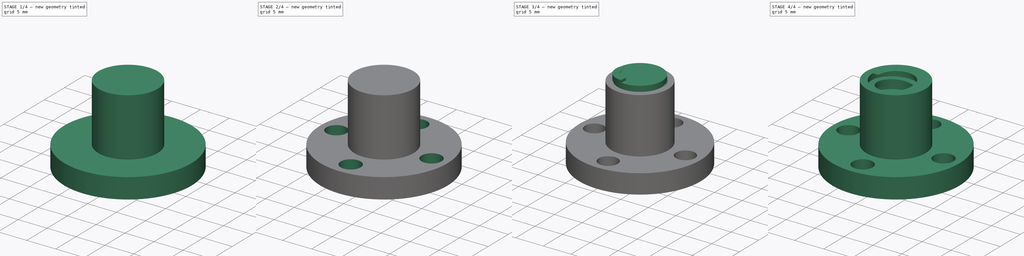
[diagram: build sequence overview — one tinted view per stage of 4, left to right]
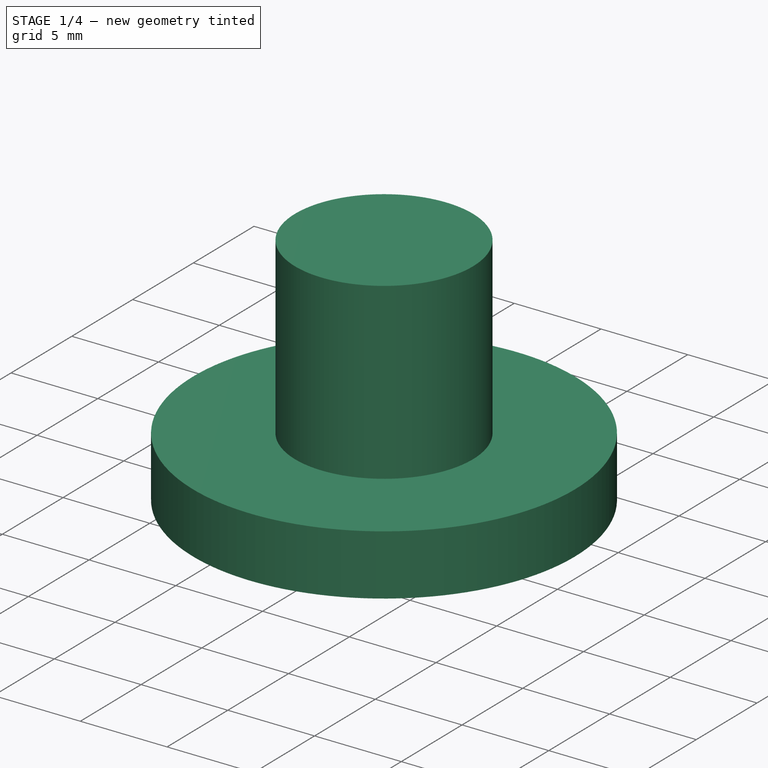
[diagram: stage 1 of 4 — iso view after this stage's code; geometry added in this stage tinted green]
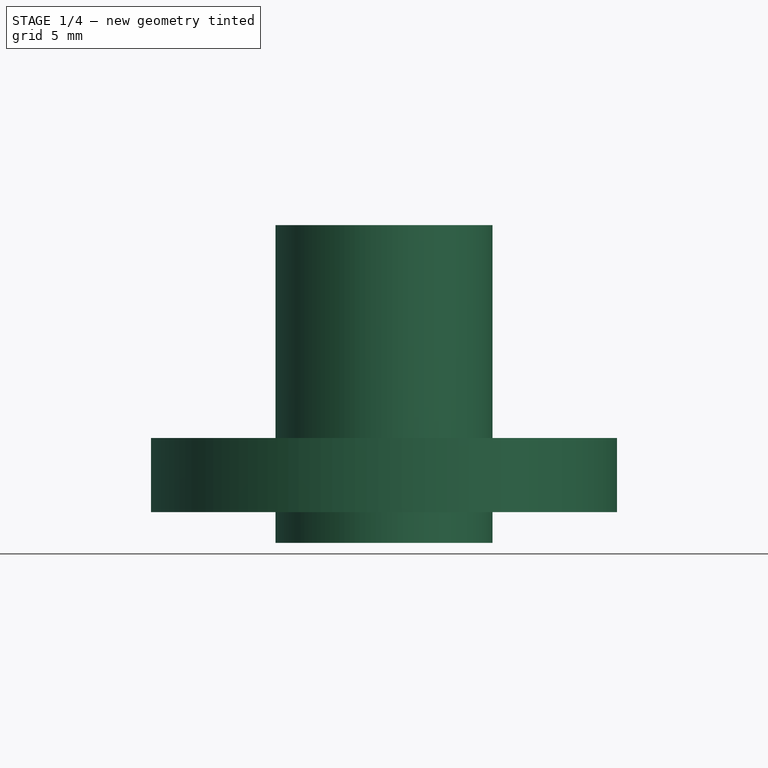
[diagram: stage 1 of 4 — front view after this stage's code; geometry added in this stage tinted green]
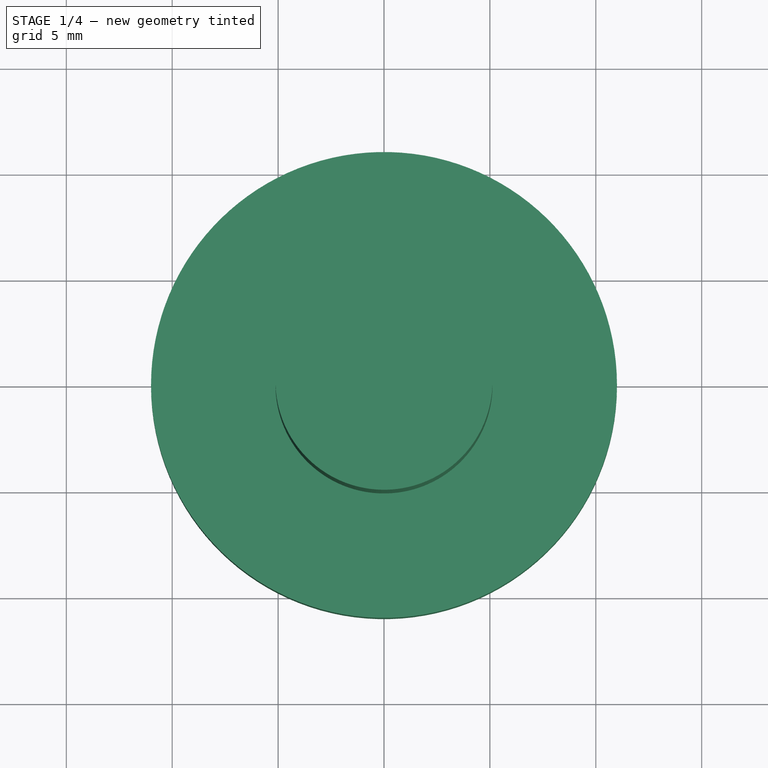
[diagram: stage 1 of 4 — top view after this stage's code; geometry added in this stage tinted green]
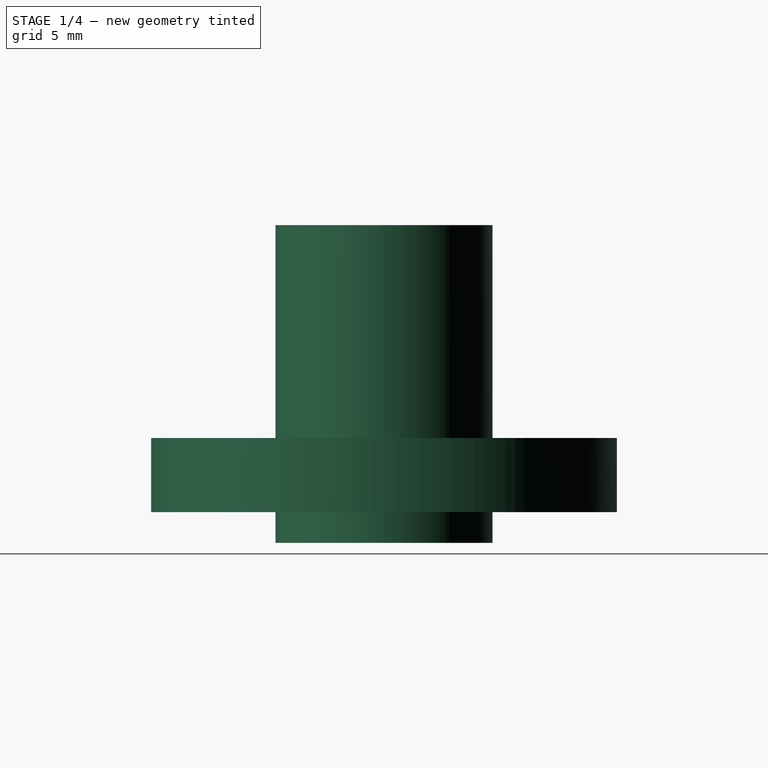
[diagram: stage 1 of 4 — right view after this stage's code; geometry added in this stage tinted green]
FCSTD DOCUMENT  (FreeCAD 0.14R3700 (Git))
Label: 8mm flanged lead screw nut with 2mm thread
License: CC-BY 3.0
LicenseURL: http://creativecommons.org/licenses/by/3.0/
objects: Sketcher::SketchObject×6, PartDesign::Pad×4, App::DocumentObjectGroup×3, Part::Cut×2, PartDesign::Pocket×1, Part::Helix×1, Part::Sweep×1, Part::MultiFuse×1
note: 21 computed .brp shape members not serialized (recipe doc carries the construction recipe); baked Part::Feature solids carry a one-line shape summary decoded from their .brp

FEATURE [Sketcher::SketchObject] Sketch  label="Sketch Base"
  sketch-geometry (1):
    g0: Circle CenterX=0 CenterY=0 CenterZ=0 NormalX=0 NormalY=0 NormalZ=1 Radius=11
  constraints (2):
    c: Coincident(g0,g-1)
    c: Radius(g0) = 11
FEATURE [PartDesign::Pad] Pad  label="Base Pad"
  Length = 3.5
  Length2 = 100
  Sketch = -> Sketch
  Type = 0
FEATURE [Sketcher::SketchObject] Sketch002  label="Sketch Shaft"
  Placement = pos=(0,0,-1.45) rot=(0,0,1;0rad)
  sketch-geometry (1):
    g0: Circle CenterX=0 CenterY=0 CenterZ=0 NormalX=0 NormalY=0 NormalZ=1 Radius=5.125
  constraints (2):
    c: Coincident(g0,g-1)
    c: Radius(g0) = 5.125
FEATURE [PartDesign::Pad] Pad001  label="Shaft Pad"
  Length = 15
  Length2 = 100
  Placement = pos=(0,0,-1.45) rot=(0,0,1;0rad)
  Sketch = -> Sketch002
  Type = 0
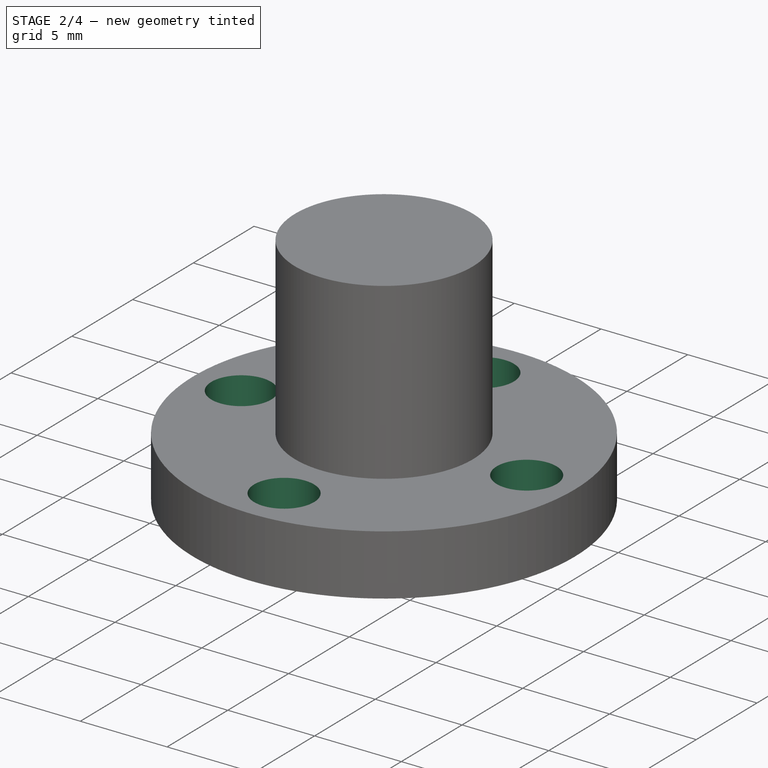
[diagram: stage 2 of 4 — iso view after this stage's code; geometry added in this stage tinted green]
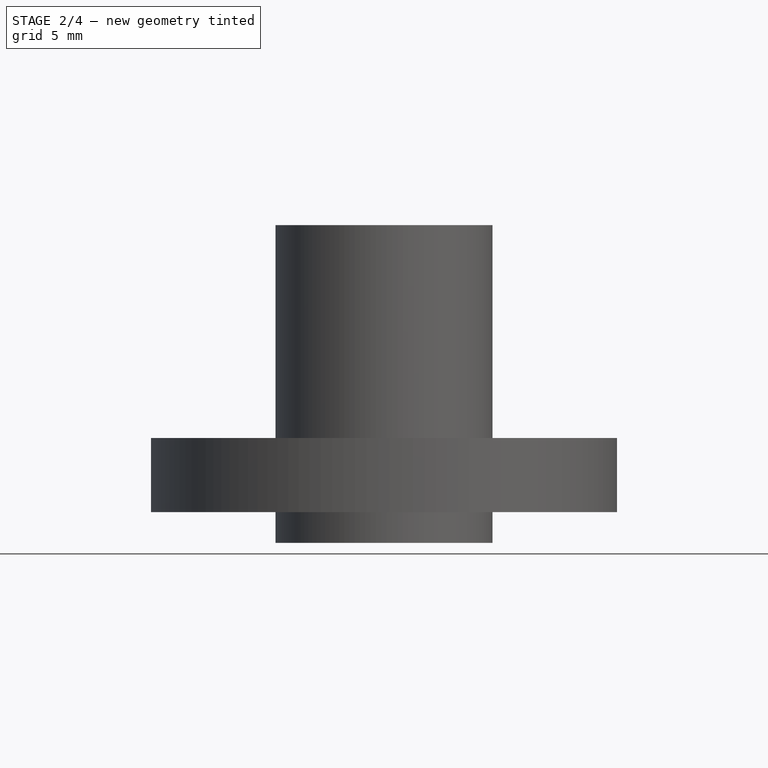
[diagram: stage 2 of 4 — front view after this stage's code; geometry added in this stage tinted green]
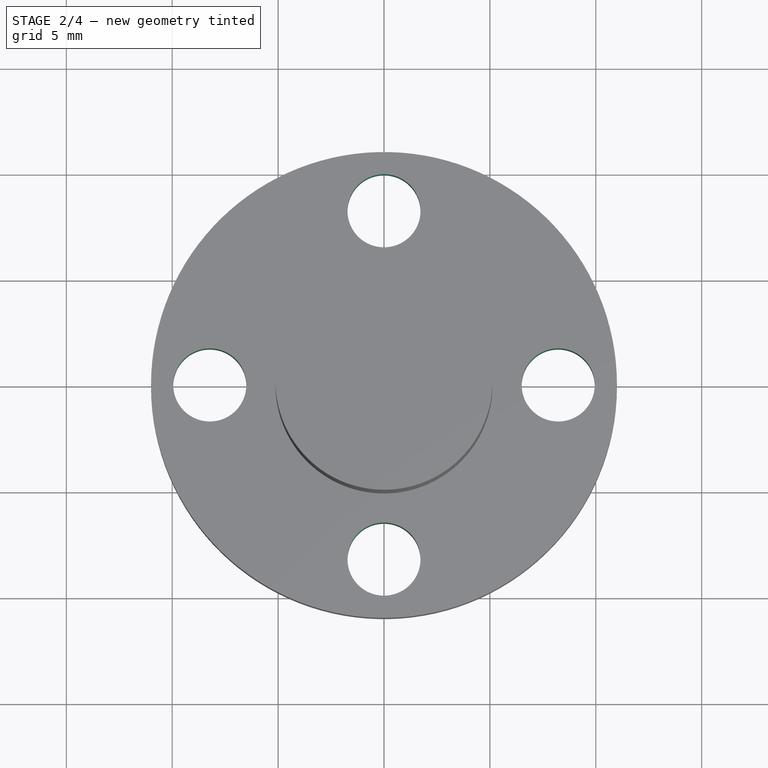
[diagram: stage 2 of 4 — top view after this stage's code; geometry added in this stage tinted green]
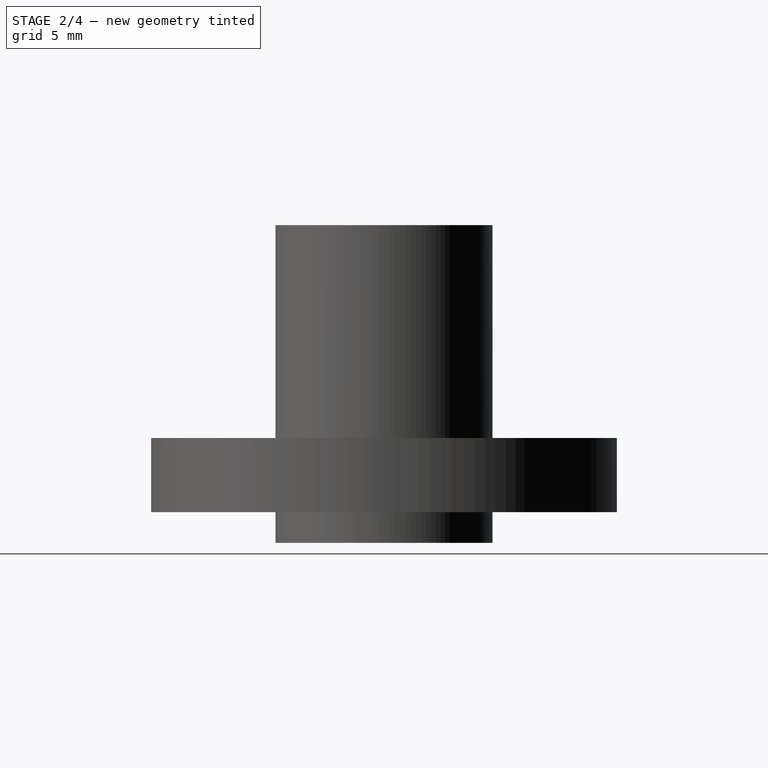
[diagram: stage 2 of 4 — right view after this stage's code; geometry added in this stage tinted green]
FEATURE [Sketcher::SketchObject] Sketch001
  Placement = pos=(0,0,3.5) rot=(0,0,1;0rad)
  Support = -> Pad [Face3]
  sketch-geometry (4):
    g0: Circle CenterX=0 CenterY=8.225 CenterZ=0 NormalX=0 NormalY=0 NormalZ=1 Radius=1.725
    g1: Circle CenterX=8.225 CenterY=0 CenterZ=0 NormalX=0 NormalY=0 NormalZ=1 Radius=1.725
    g2: Circle CenterX=-8.225 CenterY=0 CenterZ=0 NormalX=0 NormalY=0 NormalZ=1 Radius=1.725
    g3: Circle CenterX=0 CenterY=-8.225 CenterZ=0 NormalX=0 NormalY=0 NormalZ=1 Radius=1.725
  constraints (12):
    c: PointOnObject(g0,g-2)
    c: Radius(g0) = 1.725
    c: PointOnObject(g1,g-1)
    c: Equal(g1,g0)
    c: PointOnObject(g2,g-1)
    c: Equal(g2,g0)
    c: PointOnObject(g3,g-2)
    c: Equal(g3,g0)
    c: Symmetric(g3,g0,g-1)
    c: Symmetric(g2,g1,g-2)
    c: DistanceY(g0,g3) = -16.45
    c: DistanceX(g1,g2) = -16.45
FEATURE [PartDesign::Pocket] Pocket  label="Base Pad001"
  Length = 5
  Sketch = -> Sketch001
  Type = 1
FEATURE [App::DocumentObjectGroup] Group002  label="Thread"
  Group = -> [Helix,Pad002,Sketch004,Sweep,Pad003,Cut]
FEATURE [Part::MultiFuse] Fusion  label="Base & Shaft Fusion"
  Shapes = -> [Pocket,Pad001]
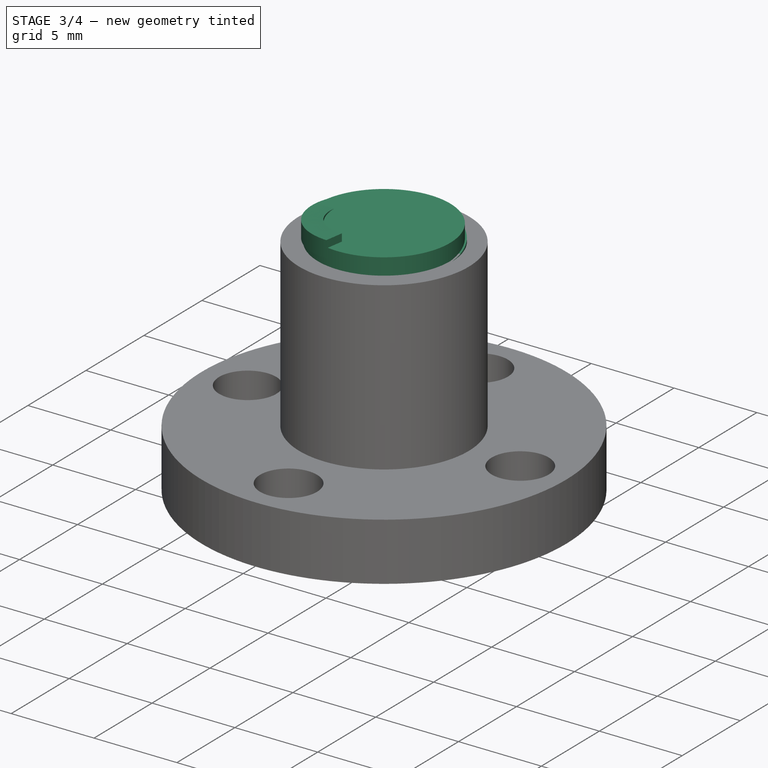
[diagram: stage 3 of 4 — iso view after this stage's code; geometry added in this stage tinted green]
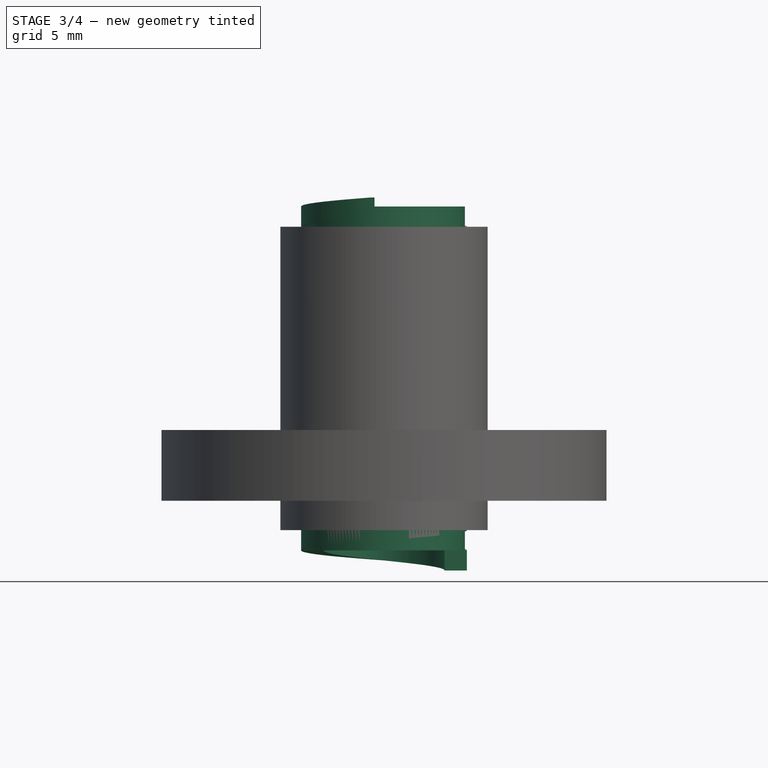
[diagram: stage 3 of 4 — front view after this stage's code; geometry added in this stage tinted green]
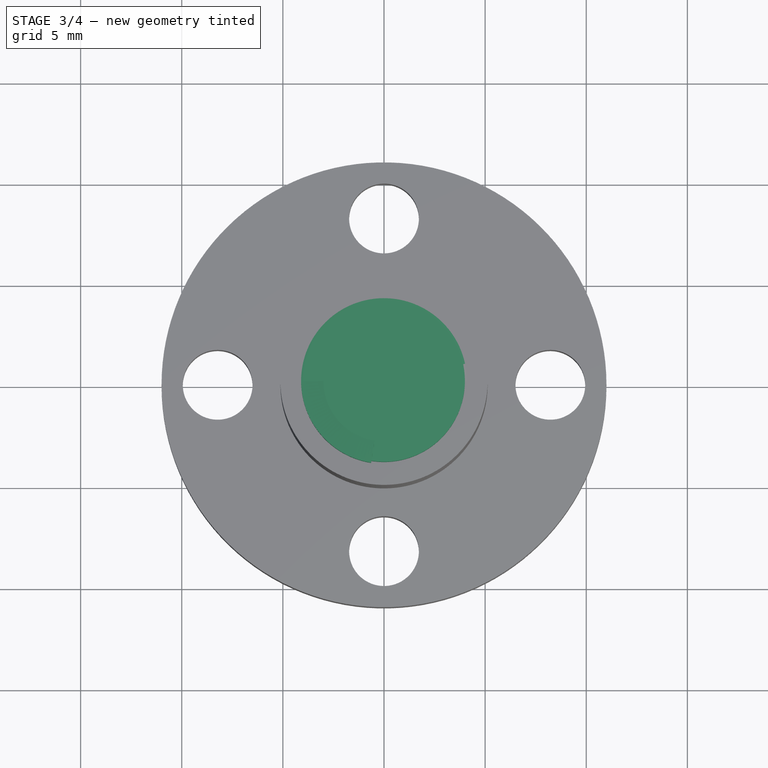
[diagram: stage 3 of 4 — top view after this stage's code; geometry added in this stage tinted green]
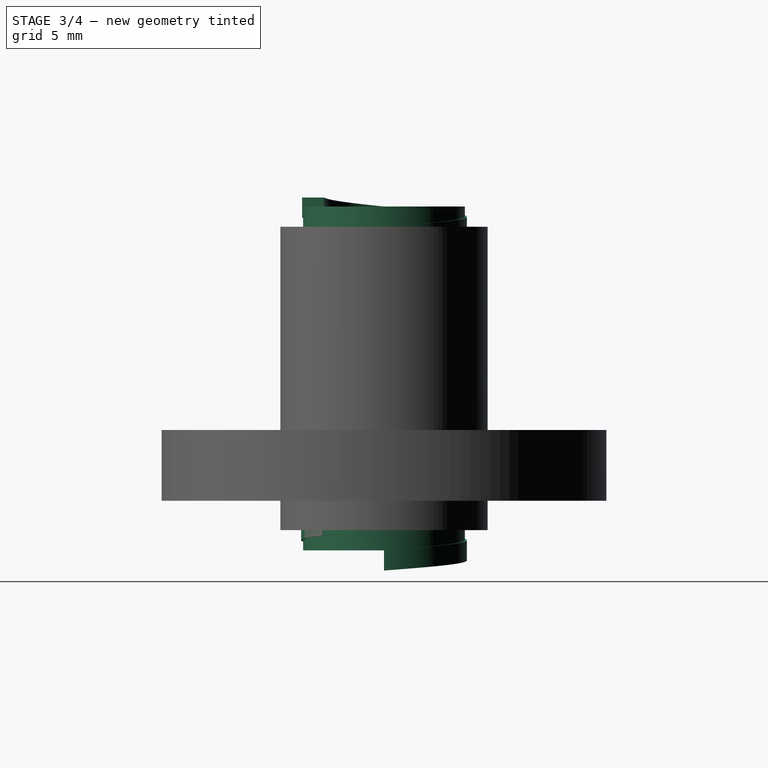
[diagram: stage 3 of 4 — right view after this stage's code; geometry added in this stage tinted green]
FEATURE [Sketcher::SketchObject] Sketch003  label="Sketch Thread Profile"
  Placement = pos=(0,0,-3.45) rot=(0,0,1;0rad)
  sketch-geometry (4):
    g0: Circle [constr] CenterX=0 CenterY=0 CenterZ=0 NormalX=0 NormalY=0 NormalZ=1 Radius=4
    g1: LineSegment StartX=4 StartY=0 StartZ=0 EndX=3 EndY=0 EndZ=0
    g2: LineSegment StartX=4 StartY=0 StartZ=0 EndX=3.89792 EndY=-0.897916 EndZ=0
    g3: LineSegment StartX=3.89792 StartY=-0.897916 StartZ=0 EndX=3 EndY=0 EndZ=0
  constraints (11):
    c: Coincident(g0,g-1)
    c: Radius(g0) = 4
    c: PointOnObject(g1,g0)
    c: Horizontal(g1)
    c: PointOnObject(g1,g-1)
    c: Distance(g1) = 1
    c: Coincident(g2,g1)
    c: PointOnObject(g2,g0)
    c: Coincident(g3,g2)
    c: Coincident(g3,g1)
    c: Angle(g3,g1) = 0.785398
FEATURE [Part::Helix] Helix  label="Thread Path Helix"
  Angle = 0
  Height = 17.45
  LocalCoord = 0
  Pitch = 2
  Placement = pos=(0,0,-3.45) rot=(0,0,1;0rad)
  Radius = 4
  Style = 1
FEATURE [App::DocumentObjectGroup] Group  label="Base"
  Group = -> [Pad,Pocket]
FEATURE [App::DocumentObjectGroup] Group001  label="Shaft"
  Group = -> [Pad001]
FEATURE [PartDesign::Pad] Pad002
  Length = 1
  Length2 = 100
  Placement = pos=(0,0,-3.45) rot=(0,0,1;0rad)
  Sketch = -> Sketch003
  Type = 0
FEATURE [Sketcher::SketchObject] Sketch004  label="Sketch Thread Profile 2"
  ExternalGeometry = -> [Pad002]
  Placement = pos=(0,0,-3.45) rot=(0,0.707107,0.707107;3.14159rad)
  Support = -> Pad002 [Face1]
  sketch-geometry (4):
    g0: LineSegment StartX=-4.1 StartY=1 StartZ=0 EndX=-3 EndY=1 EndZ=0
    g1: LineSegment StartX=-3 StartY=1 StartZ=0 EndX=-3 EndY=0 EndZ=0
    g2: LineSegment StartX=-3 StartY=0 StartZ=0 EndX=-4.1 EndY=0 EndZ=0
    g3: LineSegment StartX=-4.1 StartY=0 StartZ=0 EndX=-4.1 EndY=1 EndZ=0
  constraints (10):
    c: DistanceX(g2) = -1.1
    c: Horizontal(g2)
    c: Coincident(g1,g-3)
    c: Coincident(g2,g1)
    c: Coincident(g1,g0)
    c: Coincident(g0,g-4)
    c: Equal(g2,g0)
    c: Coincident(g3,g0)
    c: Coincident(g2,g3)
    c: Horizontal(g0)
FEATURE [Part::Sweep] Sweep  label="Thread Sweep"
  Frenet = true
  Sections = -> [Sketch004]
  Solid = true
  Spine = -> Helix [Edge1]
  Transition = 1
FEATURE [Sketcher::SketchObject] Sketch005  label="Rod Sketch"
  Placement = pos=(0,0,-2.45) rot=(0,0,1;0rad)
  sketch-geometry (1):
    g0: Circle CenterX=0 CenterY=0 CenterZ=0 NormalX=0 NormalY=0 NormalZ=1 Radius=4
  constraints (2):
    c: Coincident(g0,g-1)
    c: Radius(g0) = 4
FEATURE [PartDesign::Pad] Pad003  label="Rod Pad"
  Length = 17
  Length2 = 100
  Placement = pos=(0,0,-2.45) rot=(0,0,1;0rad)
  Sketch = -> Sketch005
  Type = 0
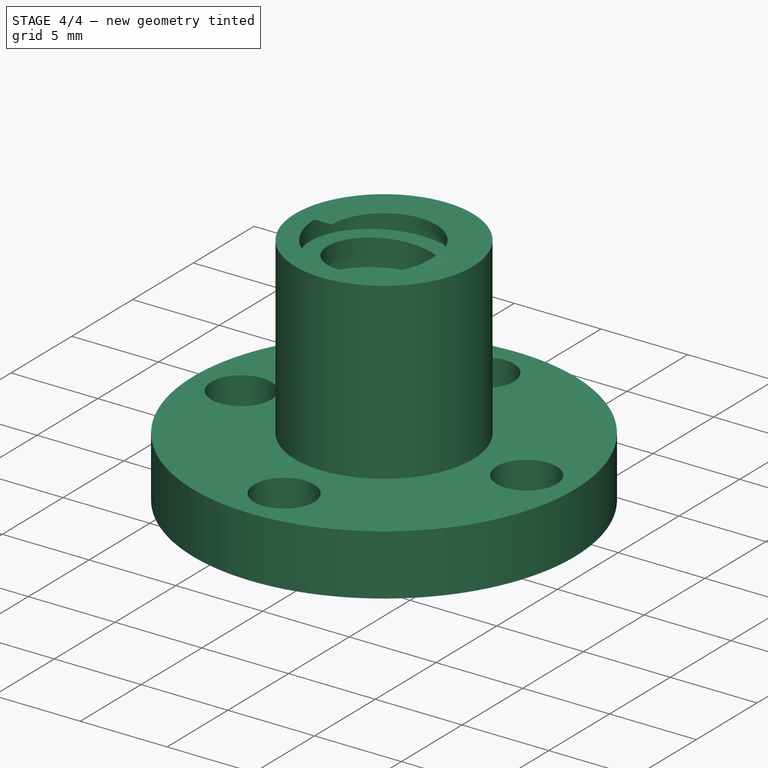
[diagram: stage 4 of 4 — iso view after this stage's code; geometry added in this stage tinted green]
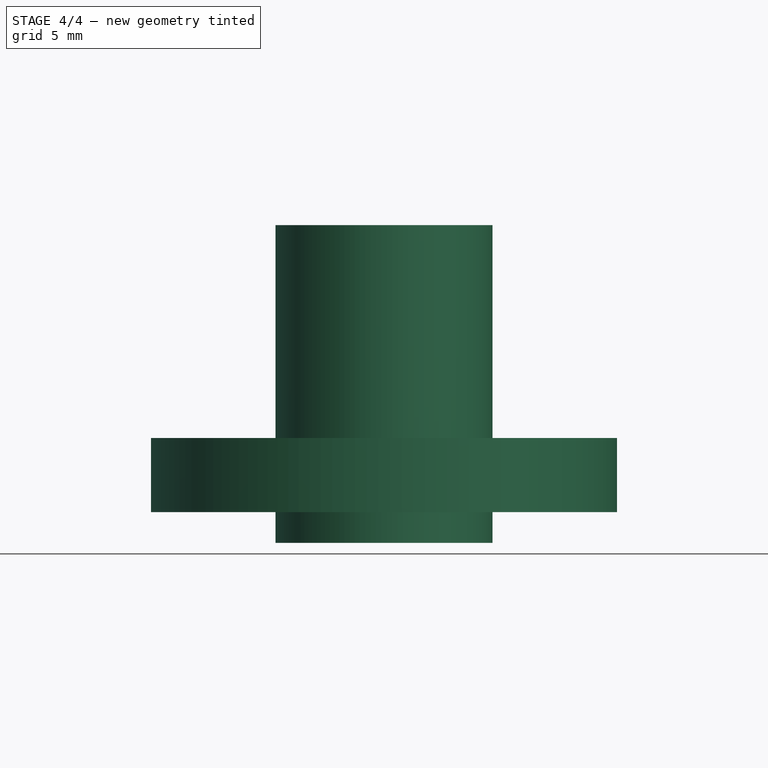
[diagram: stage 4 of 4 — front view after this stage's code; geometry added in this stage tinted green]
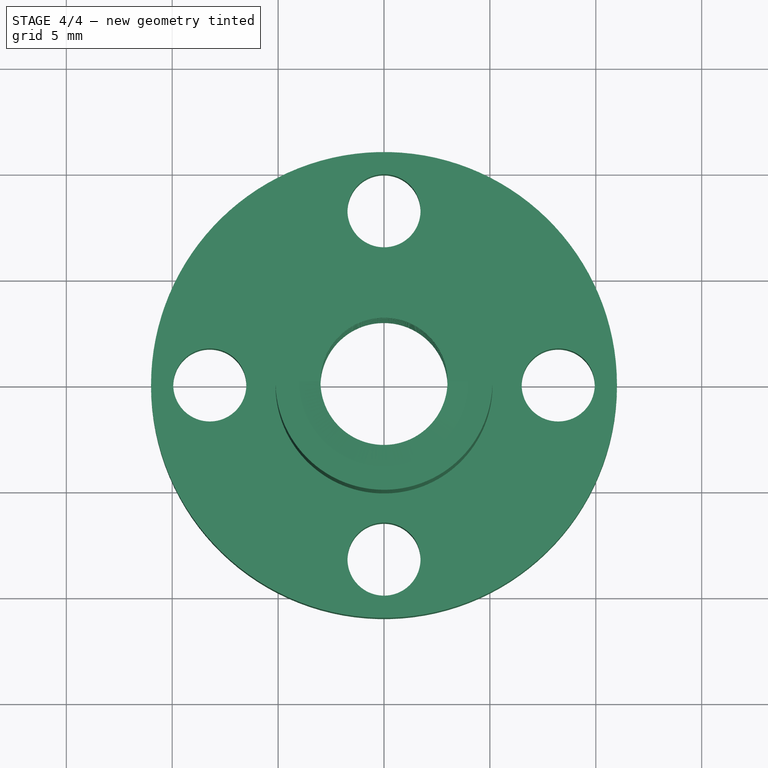
[diagram: stage 4 of 4 — top view after this stage's code; geometry added in this stage tinted green]
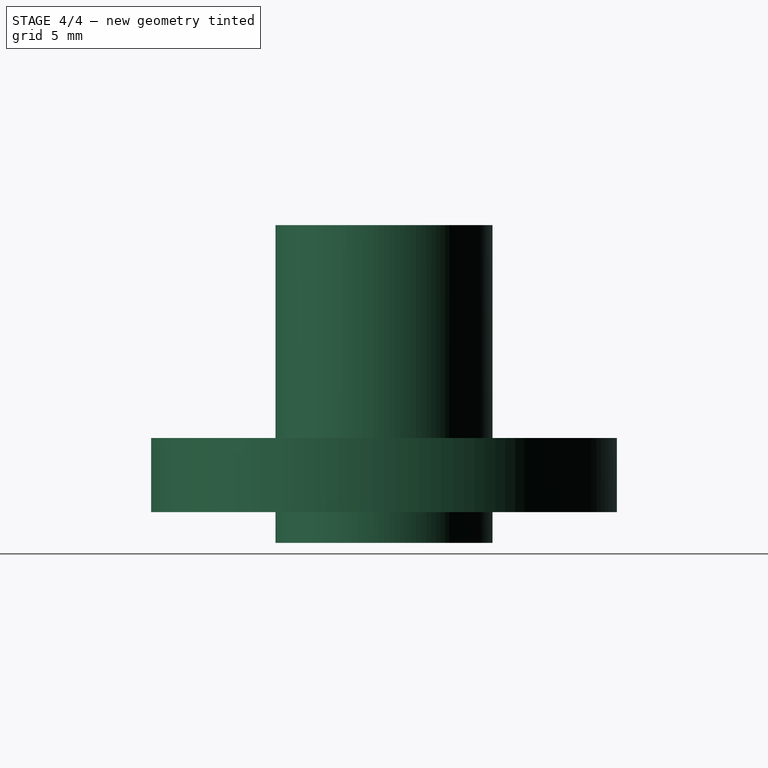
[diagram: stage 4 of 4 — right view after this stage's code; geometry added in this stage tinted green]
FEATURE [Part::Cut] Cut  label="Thread Cut"
  Base = -> Pad003
  Tool = -> Sweep
FEATURE [Part::Cut] Cut001  label="8mm flanged lead screw nut with 2mm thread"
  Base = -> Fusion
  Tool = -> Cut
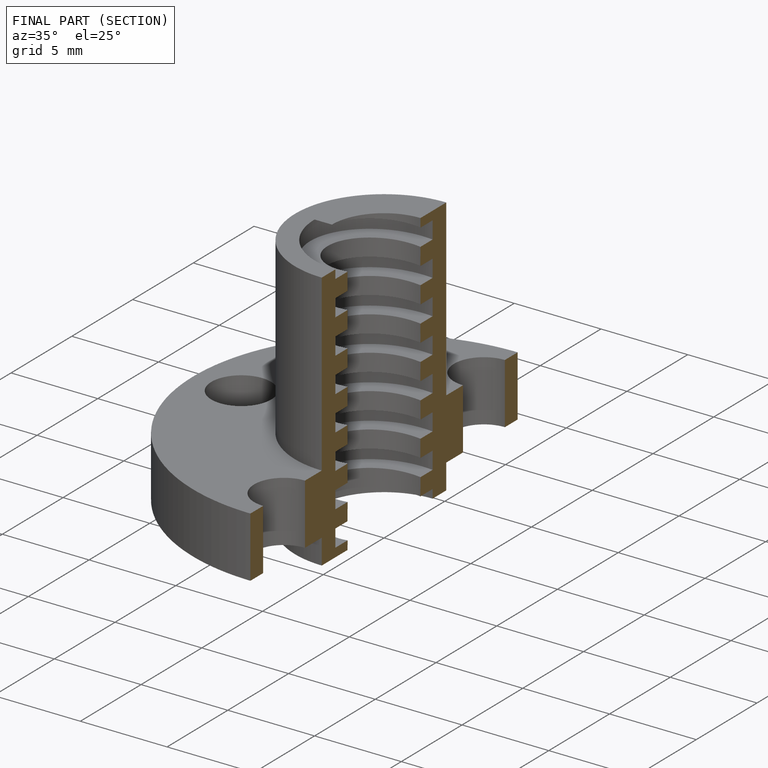
[diagram: finished part — half-section view (interior)]
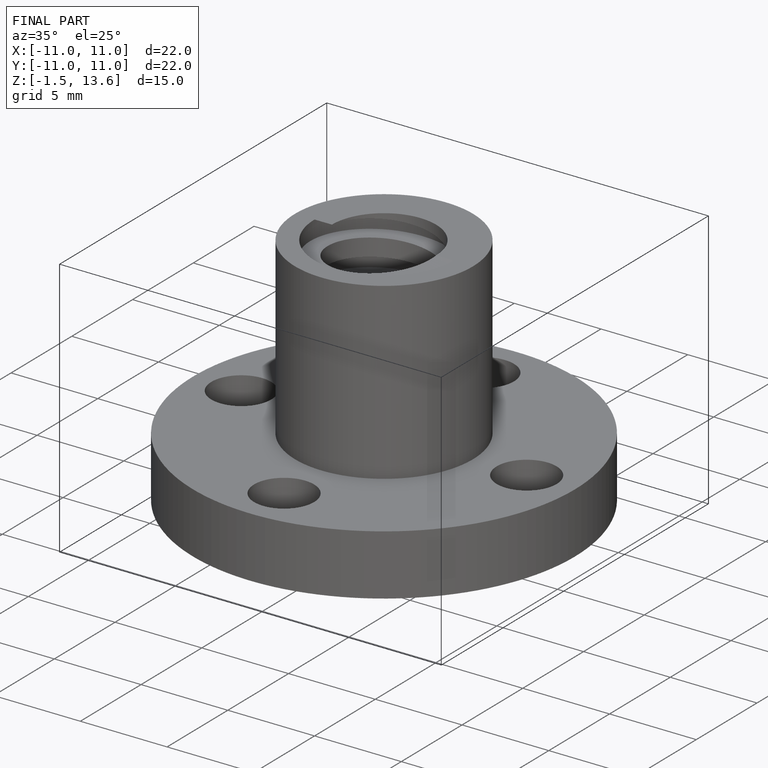
[diagram: finished part — iso view with bounding-box wireframe]
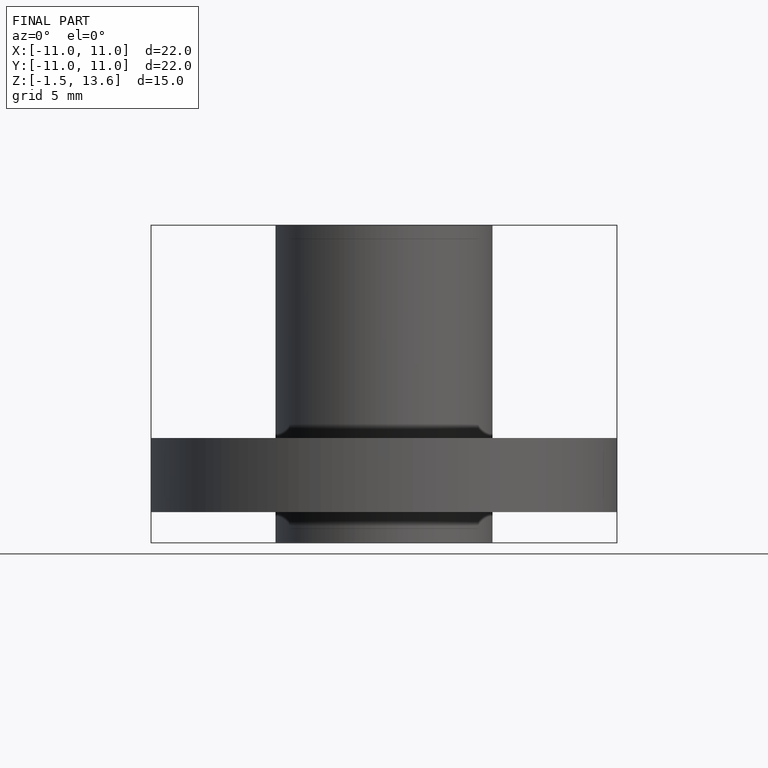
[diagram: finished part — front view with bounding-box wireframe]
